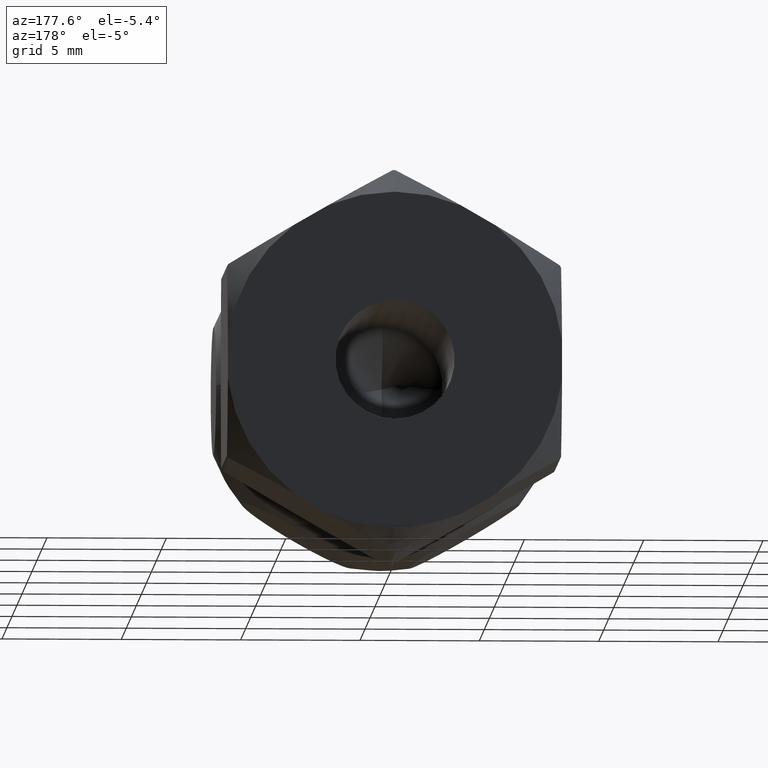
[diagram: clean part render]
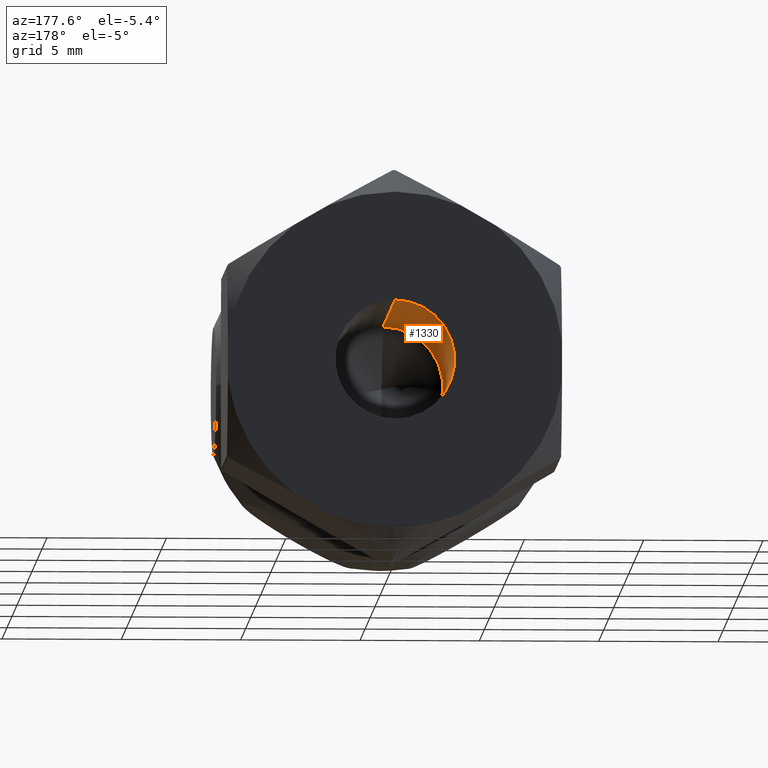
[diagram: same view with one face highlighted and labeled with its STEP entity id]
A machine part, auxiliary view. The second image highlights one B-rep face of the part: STEP entity #1330.
In plain terms, the highlighted cylindrical surface (partial cylindrical patch) has radius 2.5 mm, axis along (0, 1, 0).
Its self-contained STEP definition (entity closure, byte-faithful):
#163 = CARTESIAN_POINT ( 'NONE',  ( 0.0000000000000000000, 1.578573592792520900, 0.0000000000000000000 ) ) ;
#224 = EDGE_CURVE ( 'NONE', #711, #399, #1138, .T. ) ;
#248 = CARTESIAN_POINT ( 'NONE',  ( 3.061616997868384100E-016, 1.578573592792520900, -2.500000000000000900 ) ) ;
#277 = ORIENTED_EDGE ( 'NONE', *, *, #1132, .F. ) ;
#282 = CYLINDRICAL_SURFACE ( 'NONE', #985, 2.500000000000000900 ) ;
#293 = ORIENTED_EDGE ( 'NONE', *, *, #409, .F. ) ;
#330 = LINE ( 'NONE', #824, #731 ) ;
#354 = CARTESIAN_POINT ( 'NONE',  ( 0.0000000000000000000, -12.00000000000000000, 0.0000000000000000000 ) ) ;
#361 = DIRECTION ( 'NONE',  ( -0.0000000000000000000, -1.000000000000000000, -0.0000000000000000000 ) ) ;
#376 = DIRECTION ( 'NONE',  ( 0.0000000000000000000, 1.000000000000000000, 0.0000000000000000000 ) ) ;
#399 = VERTEX_POINT ( 'NONE', #705 ) ;
#400 = CARTESIAN_POINT ( 'NONE',  ( 0.0000000000000000000, -12.00000000000000000, 2.499999999999964900 ) ) ;
#408 = LINE ( 'NONE', #248, #1075 ) ;
#409 = EDGE_CURVE ( 'NONE', #1225, #711, #330, .T. ) ;
#410 = DIRECTION ( 'NONE',  ( 0.0000000000000000000, 1.000000000000000000, 0.0000000000000000000 ) ) ;
#420 = DIRECTION ( 'NONE',  ( 0.0000000000000000000, 0.0000000000000000000, 1.000000000000000000 ) ) ;
#639 = FACE_OUTER_BOUND ( 'NONE', #1431, .T. ) ;
#659 = AXIS2_PLACEMENT_3D ( 'NONE', #354, #1299, #1180 ) ;
#705 = CARTESIAN_POINT ( 'NONE',  ( 3.061616997868384100E-016, -4.336808689942017700E-016, -2.500000000000000900 ) ) ;
#706 = EDGE_CURVE ( 'NONE', #1031, #399, #408, .T. ) ;
#711 = VERTEX_POINT ( 'NONE', #988 ) ;
#731 = VECTOR ( 'NONE', #1386, 1000.000000000000000 ) ;
#824 = CARTESIAN_POINT ( 'NONE',  ( 0.0000000000000000000, 1.578573592792520900, 2.500000000000000900 ) ) ;
#867 = CARTESIAN_POINT ( 'NONE',  ( 0.0000000000000000000, -4.336808689942017700E-016, 0.0000000000000000000 ) ) ;
#902 = ORIENTED_EDGE ( 'NONE', *, *, #224, .F. ) ;
#985 = AXIS2_PLACEMENT_3D ( 'NONE', #163, #410, #420 ) ;
#988 = CARTESIAN_POINT ( 'NONE',  ( 0.0000000000000000000, -4.336808689942017700E-016, 2.500000000000000900 ) ) ;
#990 = AXIS2_PLACEMENT_3D ( 'NONE', #867, #361, #1187 ) ;
#1031 = VERTEX_POINT ( 'NONE', #1247 ) ;
#1060 = CIRCLE ( 'NONE', #659, 2.500000000000000900 ) ;
#1068 = ORIENTED_EDGE ( 'NONE', *, *, #706, .T. ) ;
#1075 = VECTOR ( 'NONE', #376, 1000.000000000000000 ) ;
#1132 = EDGE_CURVE ( 'NONE', #1031, #1225, #1060, .T. ) ;
#1138 = CIRCLE ( 'NONE', #990, 2.500000000000000900 ) ;
#1180 = DIRECTION ( 'NONE',  ( 0.0000000000000000000, 0.0000000000000000000, 1.000000000000000000 ) ) ;
#1187 = DIRECTION ( 'NONE',  ( 0.0000000000000000000, 0.0000000000000000000, 1.000000000000000000 ) ) ;
#1225 = VERTEX_POINT ( 'NONE', #400 ) ;
#1247 = CARTESIAN_POINT ( 'NONE',  ( 3.061616997868340200E-016, -12.00000000000000000, -2.499999999999964900 ) ) ;
#1299 = DIRECTION ( 'NONE',  ( 0.0000000000000000000, 1.000000000000000000, 0.0000000000000000000 ) ) ;
#1330 = ADVANCED_FACE ( 'NONE', ( #639 ), #282, .F. ) ;
#1386 = DIRECTION ( 'NONE',  ( 0.0000000000000000000, 1.000000000000000000, 0.0000000000000000000 ) ) ;
#1431 = EDGE_LOOP ( 'NONE', ( #277, #1068, #902, #293 ) ) ;